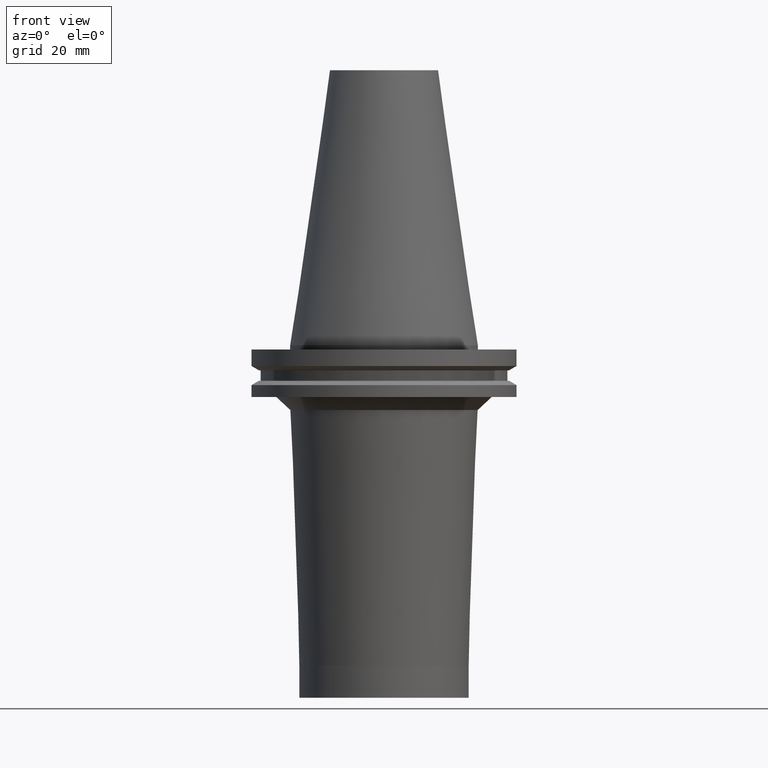
[diagram: clean part render]
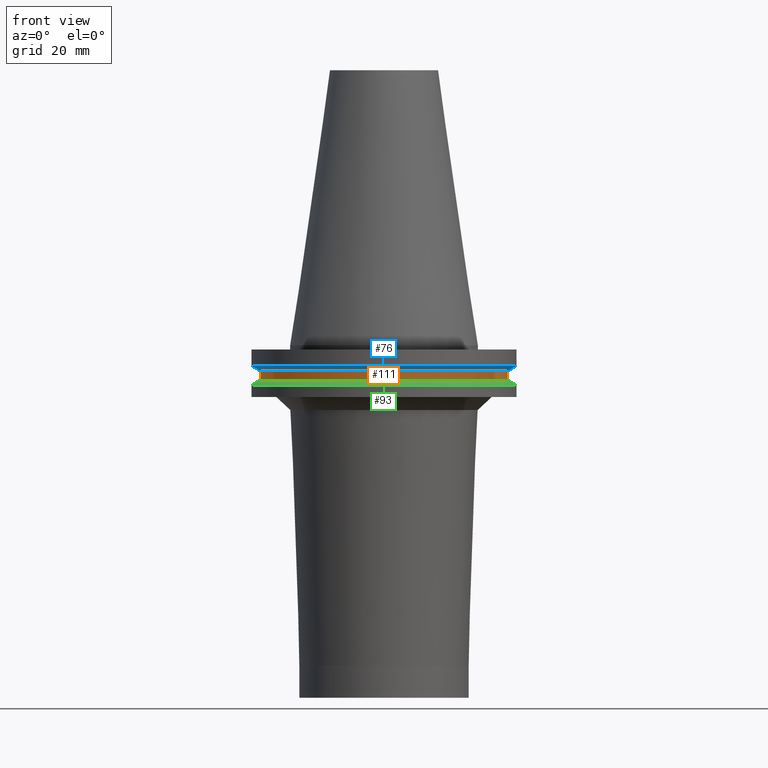
[diagram: same view with three faces highlighted in distinct colors, each labeled with its STEP entity id]
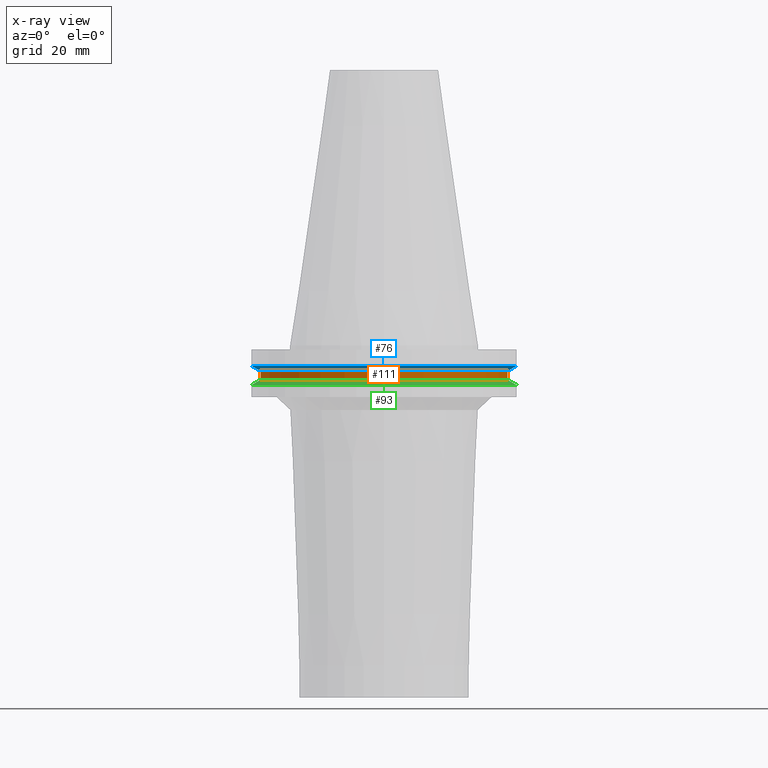
[diagram: x-ray of the same camera — body ghosted, the three highlighted faces saturated]
A machine part, front view with three faces highlighted in distinct colors.
The next image is the same camera in x-ray (body ghosted, the three faces saturated) — at least one of them is partly hidden behind the body in this view.
Their STEP definitions:

[orange] entity #111 — the highlighted cylindrical surface (bore or boss wall) has radius 45.645 mm, axis along (0, -0, -1).
#71=EDGE_CURVE('Unnamed[1]',#176,#176,#177,.T.);
#82=EDGE_CURVE('Unnamed[1]',#193,#193,#194,.T.);
#111=ADVANCED_FACE('Unnamed[1]',(#238,#239),#240,.T.);
#176=VERTEX_POINT('',#315);
#177=CIRCLE('',#316,45.645);
#193=VERTEX_POINT('',#337);
#194=CIRCLE('',#338,45.645);
#238=FACE_BOUND('',#393,.T.);
#239=FACE_BOUND('',#394,.T.);
#240=CYLINDRICAL_SURFACE('',#395,45.645);
#315=CARTESIAN_POINT('',(7.98469713044073E-016,45.645,-13.04));
#316=AXIS2_PLACEMENT_3D('',#468,#469,#470);
#337=CARTESIAN_POINT('',(5.63337527607782E-016,45.645,-9.2));
#338=AXIS2_PLACEMENT_3D('',#486,#487,#488);
#393=EDGE_LOOP('',(#537));
#394=EDGE_LOOP('',(#538));
#395=AXIS2_PLACEMENT_3D('',#539,#540,#541);
#468=CARTESIAN_POINT('',(7.98469713044073E-016,-9.82803527880224E-015,-13.04));
#469=DIRECTION('',(6.12323399573677E-017,-1.22476298162836E-016,-1.0));
#470=DIRECTION('',(2.6723575950577E-033,1.0,-1.22476298162836E-016));
#486=CARTESIAN_POINT('',(5.63337527607782E-016,-9.35772629385696E-015,-9.19999999999999));
#487=DIRECTION('',(6.12323399573677E-017,-1.22476298162836E-016,-1.0));
#488=DIRECTION('',(2.6723575950577E-033,1.0,-1.22476298162836E-016));
#537=ORIENTED_EDGE('',*,*,#71,.F.);
#538=ORIENTED_EDGE('',*,*,#82,.T.);
#539=CARTESIAN_POINT('',(6.80903620325928E-016,-9.5928807863296E-015,-11.12));
#540=DIRECTION('',(6.12323399573677E-017,-1.22476298162836E-016,-1.0));
#541=DIRECTION('',(2.6723575950577E-033,1.0,-1.22476298162836E-016));

[blue] entity #76 — the highlighted conical surface has half-angle 60 deg.
#69=EDGE_CURVE('Unnamed[1]',#173,#173,#174,.T.);
#76=ADVANCED_FACE('Unnamed[1]',(#183,#184),#185,.T.);
#124=EDGE_CURVE('Unnamed[1]',#260,#260,#261,.T.);
#173=VERTEX_POINT('',#311);
#174=CIRCLE('',#312,46.43053755);
#183=FACE_BOUND('',#324,.T.);
#184=FACE_BOUND('',#325,.T.);
#185=CONICAL_SURFACE('',#326,47.821518775,1.04719755103024);
#260=VERTEX_POINT('',#420);
#261=CIRCLE('',#421,49.2125);
#311=CARTESIAN_POINT('',(5.63337527607782E-016,46.43053755,-9.2));
#312=AXIS2_PLACEMENT_3D('',#465,#466,#467);
#324=EDGE_LOOP('',(#475));
#325=EDGE_LOOP('',(#476));
#326=AXIS2_PLACEMENT_3D('',#477,#478,#479);
#420=CARTESIAN_POINT('',(4.64988177918915E-016,49.2125,-7.59383323));
#421=AXIS2_PLACEMENT_3D('',#563,#564,#565);
#465=CARTESIAN_POINT('',(5.63337527607782E-016,-9.35772629385696E-015,-9.19999999999999));
#466=DIRECTION('',(6.12323399573677E-017,-1.22476298162836E-016,-1.0));
#467=DIRECTION('',(2.6723575950577E-033,1.0,-1.22476298162836E-016));
#475=ORIENTED_EDGE('',*,*,#69,.F.);
#476=ORIENTED_EDGE('',*,*,#124,.T.);
#477=CARTESIAN_POINT('',(5.14162852763349E-016,-9.25936761374608E-015,-8.396916615));
#478=DIRECTION('',(-6.12323399573677E-017,1.22476298162836E-016,1.0));
#479=DIRECTION('',(2.6723575950577E-033,1.0,-1.22476298162836E-016));
#563=CARTESIAN_POINT('',(4.64988177918915E-016,-9.16100893363519E-015,-7.59383322999999));
#564=DIRECTION('',(6.12323399573677E-017,-1.22476298162836E-016,-1.0));
#565=DIRECTION('',(2.6723575950577E-033,1.0,-1.22476298162836E-016));

[green] entity #93 — the highlighted conical surface has half-angle 60 deg.
#78=EDGE_CURVE('Unnamed[1]',#187,#187,#188,.T.);
#93=ADVANCED_FACE('Unnamed[1]',(#210,#211),#212,.T.);
#108=EDGE_CURVE('Unnamed[1]',#234,#234,#235,.T.);
#187=VERTEX_POINT('',#329);
#188=CIRCLE('',#330,46.43053755);
#210=FACE_BOUND('',#358,.T.);
#211=FACE_BOUND('',#359,.T.);
#212=CONICAL_SURFACE('',#360,47.821518775,1.04719755103023);
#234=VERTEX_POINT('',#388);
#235=CIRCLE('',#389,49.2125);
#329=CARTESIAN_POINT('',(7.98469713044073E-016,46.43053755,-13.04));
#330=AXIS2_PLACEMENT_3D('',#480,#481,#482);
#358=EDGE_LOOP('',(#505));
#359=EDGE_LOOP('',(#506));
#360=AXIS2_PLACEMENT_3D('',#507,#508,#509);
#388=CARTESIAN_POINT('',(8.96819062732941E-016,49.2125,-14.64616677));
#389=AXIS2_PLACEMENT_3D('',#533,#534,#535);
#480=CARTESIAN_POINT('',(7.98469713044073E-016,-9.82803527880224E-015,-13.04));
#481=DIRECTION('',(6.12323399573677E-017,-1.22476298162836E-016,-1.0));
#482=DIRECTION('',(2.6723575950577E-033,1.0,-1.22476298162836E-016));
#505=ORIENTED_EDGE('',*,*,#108,.F.);
#506=ORIENTED_EDGE('',*,*,#78,.T.);
#507=CARTESIAN_POINT('',(8.47644387888507E-016,-9.92639395891313E-015,-13.843083385));
#508=DIRECTION('',(6.12323399573677E-017,-1.22476298162836E-016,-1.0));
#509=DIRECTION('',(2.6723575950577E-033,1.0,-1.22476298162836E-016));
#533=CARTESIAN_POINT('',(8.96819062732941E-016,-1.0024752639024E-014,-14.64616677));
#534=DIRECTION('',(6.12323399573676E-017,-1.22476298162836E-016,-1.0));
#535=DIRECTION('',(2.6723575950577E-033,1.0,-1.22476298162836E-016));